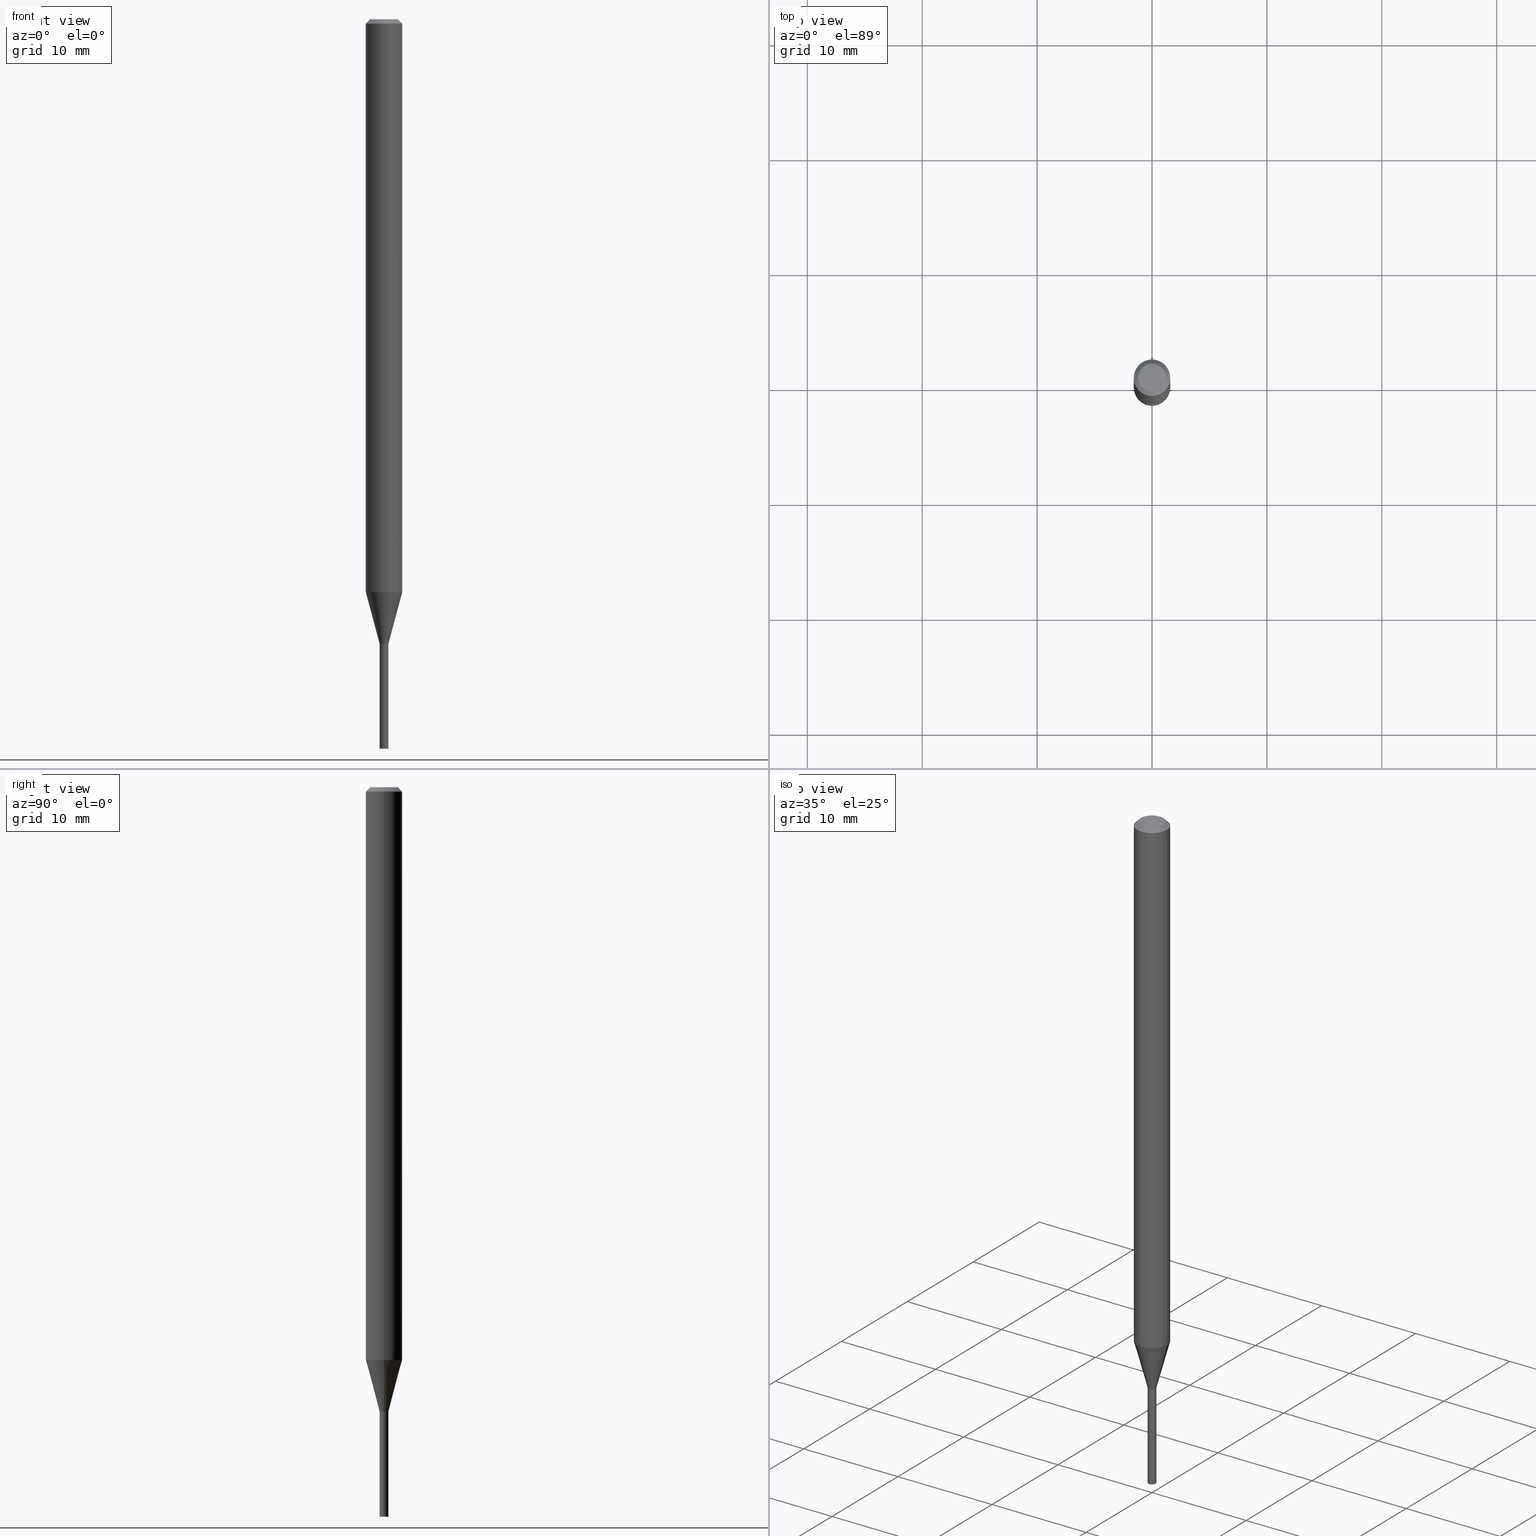
[diagram: canonical four-view strip — front | top / right | iso, engineering-drawing reading convention]
A machine part, canonical four-view strip (front | top / right | iso — engineering-drawing reading convention). The complete STEP part file that produces these views, byte-faithful:
ISO-10303-21;
HEADER;
FILE_DESCRIPTION (( 'STEP AP203' ),
    '1' );
FILE_NAME ('01287.STEP',
    '2024-03-20T01:02:49',
    ( '' ),
    ( '' ),
    'SwSTEP 2.0',
    'SolidWorks 2023',
    '' );
FILE_SCHEMA (( 'CONFIG_CONTROL_DESIGN' ));
ENDSEC;

DATA;
#1 = DIRECTION ( 'NONE',  ( 1.000000000000000000, -6.982962677686266711E-15, 0.000000000000000000 ) ) ;
#2 = EDGE_CURVE ( 'NONE', #327, #207, #42, .T. ) ;
#3 = CYLINDRICAL_SURFACE ( 'NONE', #332, 0.01499999999999999944 ) ;
#4 = EDGE_CURVE ( 'NONE', #425, #25, #303, .T. ) ;
#5 = CIRCLE ( 'NONE', #254, 0.01499999999999964730 ) ;
#6 = CARTESIAN_POINT ( 'NONE',  ( 6.113672015462842613E-29, -8.728703347107864943E-15, -2.500000000000000000 ) ) ;
#7 = LINE ( 'NONE', #256, #43 ) ;
#8 = EDGE_LOOP ( 'NONE', ( #313, #339, #345, #234 ) ) ;
#9 = DIRECTION ( 'NONE',  ( -1.000000000000000000, 6.982962677686265922E-15, -4.876176775795935793E-29 ) ) ;
#10 = EDGE_LOOP ( 'NONE', ( #23, #143, #402, #388 ) ) ;
#11 = EDGE_CURVE ( 'NONE', #202, #425, #152, .T. ) ;
#12 = CARTESIAN_POINT ( 'NONE',  ( -0.01499999999999978434, 1.065814103640134955E-16, -7.378402635382252559E-31 ) ) ;
#13 = CARTESIAN_POINT ( 'NONE',  ( 5.233303245236192586E-29, -7.471770065124331886E-15, -2.140000000000000124 ) ) ;
#14 = CARTESIAN_POINT ( 'NONE',  ( 0.000000000000000000, 0.000000000000000000, 0.000000000000000000 ) ) ;
#15 = ORIENTED_EDGE ( 'NONE', *, *, #219, .T. ) ;
#16 = ORIENTED_EDGE ( 'NONE', *, *, #193, .T. ) ;
#17 = EDGE_CURVE ( 'NONE', #239, #75, #74, .T. ) ;
#18 = VECTOR ( 'NONE', #435, 39.37007874015748143 ) ;
#19 = DIRECTION ( 'NONE',  ( 1.000000000000000000, -6.982962677686266711E-15, 4.876176775795935793E-29 ) ) ;
#20 = PERSON_AND_ORGANIZATION ( #160, #182 ) ;
#21 = VERTEX_POINT ( 'NONE', #333 ) ;
#22 = CARTESIAN_POINT ( 'NONE',  ( 5.233303245236192586E-29, -7.471770065124331886E-15, -2.140000000000000124 ) ) ;
#23 = ORIENTED_EDGE ( 'NONE', *, *, #434, .F. ) ;
#24 = DIRECTION ( 'NONE',  ( 1.000000000000000000, -6.982962677686299054E-15, 0.000000000000000000 ) ) ;
#25 = VERTEX_POINT ( 'NONE', #268 ) ;
#26 = LINE ( 'NONE', #426, #79 ) ;
#27 = APPLICATION_CONTEXT ( 'configuration controlled 3d designs of mechanical parts and assemblies' ) ;
#28 = CLOSED_SHELL ( 'NONE', ( #105, #163, #301, #31, #320, #99, #356, #259, #29, #183, #267, #91 ) ) ;
#29 = ADVANCED_FACE ( 'NONE', ( #412 ), #329, .F. ) ;
#30 = EDGE_LOOP ( 'NONE', ( #216, #279 ) ) ;
#31 = ADVANCED_FACE ( 'NONE', ( #197 ), #113, .T. ) ;
#32 = LOCAL_TIME ( 21, 2, 49.00000000000000000, #337 ) ;
#33 = FACE_OUTER_BOUND ( 'NONE', #192, .T. ) ;
#34 = DIRECTION ( 'NONE',  ( -0.7071067811865642261, 7.493145998870414114E-15, 0.7071067811865309194 ) ) ;
#35 = AXIS2_PLACEMENT_3D ( 'NONE', #341, #156, #238 ) ;
#36 =( CONVERSION_BASED_UNIT ( 'INCH', #290 ) LENGTH_UNIT ( ) NAMED_UNIT ( #340 ) );
#37 = UNCERTAINTY_MEASURE_WITH_UNIT (LENGTH_MEASURE( 1.000000000000000082E-05 ), #36, 'distance_accuracy_value', 'NONE');
#38 = EDGE_CURVE ( 'NONE', #21, #239, #397, .T. ) ;
#39 = VERTEX_POINT ( 'NONE', #157 ) ;
#40 = APPROVAL_ROLE ( '' ) ;
#41 = ORIENTED_EDGE ( 'NONE', *, *, #2, .F. ) ;
#42 = CIRCLE ( 'NONE', #211, 0.04749999999999999362 ) ;
#43 = VECTOR ( 'NONE', #365, 39.37007874015748143 ) ;
#44 = CARTESIAN_POINT ( 'NONE',  ( -1.466534075644639810E-44, 2.093821988217664729E-30, 5.996944520148642253E-16 ) ) ;
#45 = COORDINATED_UNIVERSAL_TIME_OFFSET ( 5, 0, .BEHIND. ) ;
#46 = DIRECTION ( 'NONE',  ( -2.445468806185136597E-29, 3.491481338843145583E-15, 1.000000000000000000 ) ) ;
#47 = SHAPE_DEFINITION_REPRESENTATION ( #300, #377 ) ;
#48 = EDGE_CURVE ( 'NONE', #207, #327, #364, .T. ) ;
#49 = EDGE_LOOP ( 'NONE', ( #404, #115, #16, #237 ) ) ;
#50 = CARTESIAN_POINT ( 'NONE',  ( 5.232080510833100906E-29, -7.470024324454911171E-15, -2.139500000000000401 ) ) ;
#51 = DATE_AND_TIME ( #87, #432 ) ;
#52 = ORIENTED_EDGE ( 'NONE', *, *, #277, .T. ) ;
#53 = LINE ( 'NONE', #240, #201 ) ;
#54 = VECTOR ( 'NONE', #242, 39.37007874015748854 ) ;
#55 = PERSON_AND_ORGANIZATION ( #160, #182 ) ;
#56 = VERTEX_POINT ( 'NONE', #374 ) ;
#57 = ORIENTED_EDGE ( 'NONE', *, *, #417, .T. ) ;
#58 = LINE ( 'NONE', #94, #191 ) ;
#59 = EDGE_CURVE ( 'NONE', #310, #75, #381, .T. ) ;
#60 = ORIENTED_EDGE ( 'NONE', *, *, #417, .F. ) ;
#61 = DIRECTION ( 'NONE',  ( 2.445468806185136597E-29, -3.491481338843145583E-15, -1.000000000000000000 ) ) ;
#62 = LINE ( 'NONE', #97, #249 ) ;
#63 = CC_DESIGN_APPROVAL ( #179, ( #401 ) ) ;
#64 = CARTESIAN_POINT ( 'NONE',  ( 3.668203209277705088E-31, -5.237222008264718399E-17, -0.01499999999999999944 ) ) ;
#65 = DIRECTION ( 'NONE',  ( 1.000000000000000000, -6.982962677686299054E-15, 0.000000000000000000 ) ) ;
#66 = DIRECTION ( 'NONE',  ( -2.445468806185136597E-29, 3.491481338843145583E-15, 1.000000000000000000 ) ) ;
#67 = AXIS2_PLACEMENT_3D ( 'NONE', #405, #302, #77 ) ;
#68 = CARTESIAN_POINT ( 'NONE',  ( 5.233303245236192586E-29, -7.471770065124331886E-15, -2.140000000000000124 ) ) ;
#69 = VECTOR ( 'NONE', #228, 39.37007874015748143 ) ;
#70 = FACE_OUTER_BOUND ( 'NONE', #199, .T. ) ;
#71 =( LENGTH_UNIT ( ) NAMED_UNIT ( * ) SI_UNIT ( $, .METRE. ) );
#72 = EDGE_CURVE ( 'NONE', #56, #202, #5, .T. ) ;
#73 = ORIENTED_EDGE ( 'NONE', *, *, #247, .F. ) ;
#74 = LINE ( 'NONE', #84, #409 ) ;
#75 = VERTEX_POINT ( 'NONE', #270 ) ;
#76 = PRODUCT ( '01287', '01287', '', ( #343 ) ) ;
#77 = DIRECTION ( 'NONE',  ( 1.000000000000000000, -6.982962677686267499E-15, 4.852736867747366768E-29 ) ) ;
#78 = APPROVAL_STATUS ( 'not_yet_approved' ) ;
#79 = VECTOR ( 'NONE', #133, 39.37007874015748143 ) ;
#80 = LOCAL_TIME ( 21, 2, 49.00000000000000000, #446 ) ;
#81 = EDGE_CURVE ( 'NONE', #39, #123, #292, .T. ) ;
#82 = DIRECTION ( 'NONE',  ( -2.445468806185136597E-29, 3.491481338843145583E-15, 1.000000000000000000 ) ) ;
#83 = PERSON_AND_ORGANIZATION ( #160, #182 ) ;
#84 = CARTESIAN_POINT ( 'NONE',  ( -0.01499999999999999944, 1.065814103640150239E-16, -7.378402635382358533E-31 ) ) ;
#85 = CYLINDRICAL_SURFACE ( 'NONE', #459, 0.01499999999999999944 ) ;
#86 = CYLINDRICAL_SURFACE ( 'NONE', #181, 0.01499999999999978434 ) ;
#87 = CALENDAR_DATE ( 2024, 19, 3 ) ;
#88 = ORIENTED_EDGE ( 'NONE', *, *, #210, .F. ) ;
#89 = AXIS2_PLACEMENT_3D ( 'NONE', #50, #82, #147 ) ;
#90 = ORIENTED_EDGE ( 'NONE', *, *, #312, .T. ) ;
#91 = ADVANCED_FACE ( 'NONE', ( #194 ), #145, .F. ) ;
#92 = DIRECTION ( 'NONE',  ( 1.000000000000000000, -6.982962677686265922E-15, 4.876176775795935793E-29 ) ) ;
#93 = ORIENTED_EDGE ( 'NONE', *, *, #408, .F. ) ;
#94 = CARTESIAN_POINT ( 'NONE',  ( -0.01499999999999964730, -7.365188654760319130E-15, -2.140000000000000124 ) ) ;
#95 = ORIENTED_EDGE ( 'NONE', *, *, #460, .T. ) ;
#96 = CARTESIAN_POINT ( 'NONE',  ( 0.04749999999999999362, -4.035134999187568269E-16, 5.996944520148667891E-16 ) ) ;
#97 = CARTESIAN_POINT ( 'NONE',  ( 0.01450000000000000074, -7.573023023950783826E-15, -2.140000000000000124 ) ) ;
#98 = CIRCLE ( 'NONE', #104, 0.01499999999999999944 ) ;
#99 = ADVANCED_FACE ( 'NONE', ( #450 ), #371, .T. ) ;
#100 = CC_DESIGN_DATE_AND_TIME_ASSIGNMENT ( #233, #120, ( #286 ) ) ;
#101 = LINE ( 'NONE', #400, #18 ) ;
#102 = CARTESIAN_POINT ( 'NONE',  ( 5.233303245236192586E-29, -7.471770065124331886E-15, -2.140000000000000124 ) ) ;
#103 = DIRECTION ( 'NONE',  ( 2.445468806185136597E-29, -3.491481338843145583E-15, -1.000000000000000000 ) ) ;
#104 = AXIS2_PLACEMENT_3D ( 'NONE', #6, #248, #137 ) ;
#105 = ADVANCED_FACE ( 'NONE', ( #367 ), #86, .F. ) ;
#106 = CARTESIAN_POINT ( 'NONE',  ( -0.06250000000000000000, -3.008510271185196458E-15, -0.01499999999999999944 ) ) ;
#107 = ADVANCED_FACE ( 'NONE', ( #336 ), #465, .F. ) ;
#108 = APPLICATION_CONTEXT ( 'configuration controlled 3d designs of mechanical parts and assemblies' ) ;
#109 = CONICAL_SURFACE ( 'NONE', #344, 0.06250000000000000000, 0.7853981633974284060 ) ;
#110 = DIRECTION ( 'NONE',  ( 1.000000000000000000, -6.982962677686266711E-15, 4.876176775795935793E-29 ) ) ;
#111 = CARTESIAN_POINT ( 'NONE',  ( 3.668203209277705088E-31, -5.237222008264718399E-17, -0.01499999999999999944 ) ) ;
#112 = CARTESIAN_POINT ( 'NONE',  ( 5.233303245236192586E-29, -7.471770065124331886E-15, -2.140000000000000124 ) ) ;
#113 = CYLINDRICAL_SURFACE ( 'NONE', #431, 0.06250000000000000000 ) ;
#114 = SECURITY_CLASSIFICATION_LEVEL ( 'unclassified' ) ;
#115 = ORIENTED_EDGE ( 'NONE', *, *, #81, .T. ) ;
#116 = CC_DESIGN_PERSON_AND_ORGANIZATION_ASSIGNMENT ( #198, #262, ( #286 ) ) ;
#117 = CARTESIAN_POINT ( 'NONE',  ( 5.233303245236192586E-29, -7.471770065124331886E-15, -2.140000000000000124 ) ) ;
#118 = CIRCLE ( 'NONE', #393, 0.06250000000000000000 ) ;
#119 = ORIENTED_EDGE ( 'NONE', *, *, #48, .F. ) ;
#120 = DATE_TIME_ROLE ( 'creation_date' ) ;
#121 = DIRECTION ( 'NONE',  ( 1.000000000000000000, -6.982962677686238312E-15, 0.000000000000000000 ) ) ;
#122 = PERSON_AND_ORGANIZATION_ROLE ( 'classification_officer' ) ;
#123 = VERTEX_POINT ( 'NONE', #131 ) ;
#124 = LINE ( 'NONE', #424, #54 ) ;
#125 = DIRECTION ( 'NONE',  ( 1.000000000000000000, -6.982962677686265922E-15, 4.876176775795935793E-29 ) ) ;
#126 = EDGE_CURVE ( 'NONE', #461, #165, #246, .T. ) ;
#127 = EDGE_LOOP ( 'NONE', ( #440, #454, #218, #463 ) ) ;
#128 = AXIS2_PLACEMENT_3D ( 'NONE', #117, #264, #257 ) ;
#129 = ORIENTED_EDGE ( 'NONE', *, *, #126, .F. ) ;
#130 = DIRECTION ( 'NONE',  ( -2.445468806185136597E-29, 3.491481338843145583E-15, 1.000000000000000000 ) ) ;
#131 = CARTESIAN_POINT ( 'NONE',  ( 0.01450000000000000074, -7.573023023950783826E-15, -2.140000000000000124 ) ) ;
#132 = ORIENTED_EDGE ( 'NONE', *, *, #126, .T. ) ;
#133 = DIRECTION ( 'NONE',  ( -2.445468806185136877E-29, 3.491481338843145188E-15, 1.000000000000000000 ) ) ;
#134 = AXIS2_PLACEMENT_3D ( 'NONE', #462, #130, #278 ) ;
#135 = CARTESIAN_POINT ( 'NONE',  ( -0.01450000000000000074, -7.368741368439117662E-15, -2.140000000000000124 ) ) ;
#136 = CARTESIAN_POINT ( 'NONE',  ( -0.06250000000000000000, -6.408737532137808059E-15, -1.962727586640477417 ) ) ;
#137 = DIRECTION ( 'NONE',  ( 1.000000000000000000, -6.982962677686203602E-15, 0.000000000000000000 ) ) ;
#138 = ADVANCED_FACE ( 'NONE', ( #33 ), #3, .T. ) ;
#139 = CC_DESIGN_SECURITY_CLASSIFICATION ( #281, ( #401 ) ) ;
#140 = PRODUCT_RELATED_PRODUCT_CATEGORY ( 'detail', '', ( #76 ) ) ;
#141 = CARTESIAN_POINT ( 'NONE',  ( -0.01499999999999999944, -7.993655295752084081E-15, -2.500000000000000000 ) ) ;
#142 = CARTESIAN_POINT ( 'NONE',  ( 5.232080510833100906E-29, -7.470024324454911171E-15, -2.139500000000000401 ) ) ;
#143 = ORIENTED_EDGE ( 'NONE', *, *, #11, .T. ) ;
#144 = DESIGN_CONTEXT ( 'detailed design', #27, 'design' ) ;
#145 = CYLINDRICAL_SURFACE ( 'NONE', #155, 0.01499999999999978434 ) ;
#146 = AXIS2_PLACEMENT_3D ( 'NONE', #162, #414, #309 ) ;
#147 = DIRECTION ( 'NONE',  ( 1.000000000000000000, -6.982962677686239100E-15, 0.000000000000000000 ) ) ;
#148 = COORDINATED_UNIVERSAL_TIME_OFFSET ( 5, 0, .BEHIND. ) ;
#149 = CARTESIAN_POINT ( 'NONE',  ( 0.000000000000000000, 0.000000000000000000, 0.000000000000000000 ) ) ;
#150 = APPLICATION_PROTOCOL_DEFINITION ( 'international standard', 'config_control_design', 1994, #27 ) ;
#151 = CC_DESIGN_DATE_AND_TIME_ASSIGNMENT ( #269, #411, ( #281 ) ) ;
#152 = LINE ( 'NONE', #12, #69 ) ;
#153 = CALENDAR_DATE ( 2024, 19, 3 ) ;
#154 = VERTEX_POINT ( 'NONE', #136 ) ;
#155 = AXIS2_PLACEMENT_3D ( 'NONE', #149, #196, #298 ) ;
#156 = DIRECTION ( 'NONE',  ( -2.445468806185136597E-29, 3.491481338843145583E-15, 1.000000000000000000 ) ) ;
#157 = CARTESIAN_POINT ( 'NONE',  ( -0.01450000000000000074, -7.366092141265007250E-15, -2.140000000000000124 ) ) ;
#158 = PERSON_AND_ORGANIZATION_ROLE ( 'design_owner' ) ;
#159 = MANIFOLD_SOLID_BREP ( 'Body-Move/Copy2[1]', #420 ) ;
#160 = PERSON ( 'UNSPECIFIED', 'UNSPECIFIED', 'UNSPECIFIED', ('UNSPECIFIED'), ('UNSPECIFIED'), ('UNSPECIFIED') ) ;
#161 = ORIENTED_EDGE ( 'NONE', *, *, #193, .F. ) ;
#162 = CARTESIAN_POINT ( 'NONE',  ( 1.047444401653463219E-16, 0.01499999999999252799, -2.140000000000000124 ) ) ;
#163 = ADVANCED_FACE ( 'NONE', ( #284 ), #321, .T. ) ;
#164 = PERSON_AND_ORGANIZATION ( #160, #182 ) ;
#165 = VERTEX_POINT ( 'NONE', #326 ) ;
#166 = CARTESIAN_POINT ( 'NONE',  ( 5.233303245236192586E-29, -7.471770065124331886E-15, -2.140000000000000124 ) ) ;
#167 = CC_DESIGN_PERSON_AND_ORGANIZATION_ASSIGNMENT ( #406, #122, ( #281 ) ) ;
#168 = ORIENTED_EDGE ( 'NONE', *, *, #177, .F. ) ;
#169 = FACE_OUTER_BOUND ( 'NONE', #8, .T. ) ;
#170 = AXIS2_PLACEMENT_3D ( 'NONE', #142, #289, #323 ) ;
#171 = ORIENTED_EDGE ( 'NONE', *, *, #59, .T. ) ;
#172 = DIRECTION ( 'NONE',  ( -0.2588190451025212391, 5.211531920934549464E-15, 0.9659258262890679791 ) ) ;
#173 =( NAMED_UNIT ( * ) PLANE_ANGLE_UNIT ( ) SI_UNIT ( $, .RADIAN. ) );
#174 = AXIS2_PLACEMENT_3D ( 'NONE', #22, #205, #24 ) ;
#175 = APPROVAL_PERSON_ORGANIZATION ( #413, #206, #299 ) ;
#176 = FACE_OUTER_BOUND ( 'NONE', #452, .T. ) ;
#177 = EDGE_CURVE ( 'NONE', #25, #425, #458, .T. ) ;
#178 = DIRECTION ( 'NONE',  ( -2.445468806185136877E-29, 3.491481338843145188E-15, 1.000000000000000000 ) ) ;
#179 = APPROVAL ( #296, 'UNSPECIFIED' ) ;
#180 = CARTESIAN_POINT ( 'NONE',  ( -0.04749999999999999362, 3.578768372314221353E-16, 5.996944520148618587E-16 ) ) ;
#181 = AXIS2_PLACEMENT_3D ( 'NONE', #232, #294, #110 ) ;
#182 = ORGANIZATION ( 'UNSPECIFIED', 'UNSPECIFIED', '' ) ;
#183 = ADVANCED_FACE ( 'NONE', ( #70 ), #331, .F. ) ;
#184 = DIRECTION ( 'NONE',  ( -2.445468806185136597E-29, 3.491481338843145583E-15, 1.000000000000000000 ) ) ;
#185 = EDGE_LOOP ( 'NONE', ( #186, #423, #350, #386 ) ) ;
#186 = ORIENTED_EDGE ( 'NONE', *, *, #362, .F. ) ;
#187 = DIRECTION ( 'NONE',  ( 1.000000000000000000, -6.982962677686238312E-15, 0.000000000000000000 ) ) ;
#188 = DIRECTION ( 'NONE',  ( -2.445468806185136597E-29, 3.491481338843145583E-15, 1.000000000000000000 ) ) ;
#189 = DATE_AND_TIME ( #153, #244 ) ;
#190 = AXIS2_PLACEMENT_3D ( 'NONE', #102, #66, #324 ) ;
#191 = VECTOR ( 'NONE', #172, 39.37007874015748854 ) ;
#192 = EDGE_LOOP ( 'NONE', ( #297, #227, #263, #369 ) ) ;
#193 = EDGE_CURVE ( 'NONE', #123, #25, #62, .T. ) ;
#194 = FACE_OUTER_BOUND ( 'NONE', #127, .T. ) ;
#195 = CALENDAR_DATE ( 2024, 19, 3 ) ;
#196 = DIRECTION ( 'NONE',  ( -2.445468806185136597E-29, 3.491481338843145583E-15, 1.000000000000000000 ) ) ;
#197 = FACE_OUTER_BOUND ( 'NONE', #204, .T. ) ;
#198 = PERSON_AND_ORGANIZATION ( #160, #182 ) ;
#199 = EDGE_LOOP ( 'NONE', ( #88, #260 ) ) ;
#200 = AXIS2_PLACEMENT_3D ( 'NONE', #372, #217, #415 ) ;
#201 = VECTOR ( 'NONE', #273, 39.37007874015748854 ) ;
#202 = VERTEX_POINT ( 'NONE', #466 ) ;
#203 = CARTESIAN_POINT ( 'NONE',  ( 3.668203209277705088E-31, -5.237222008264718399E-17, -0.01499999999999999944 ) ) ;
#204 = EDGE_LOOP ( 'NONE', ( #348, #95, #60, #129 ) ) ;
#205 = DIRECTION ( 'NONE',  ( -2.445468806185136597E-29, 3.491481338843145583E-15, 1.000000000000000000 ) ) ;
#206 = APPROVAL ( #416, 'UNSPECIFIED' ) ;
#207 = VERTEX_POINT ( 'NONE', #180 ) ;
#208 = AXIS2_PLACEMENT_3D ( 'NONE', #441, #410, #9 ) ;
#209 = CARTESIAN_POINT ( 'NONE',  ( 0.06250000000000000000, -7.289261909343262345E-15, -1.962727586640477417 ) ) ;
#210 = EDGE_CURVE ( 'NONE', #123, #39, #222, .T. ) ;
#211 = AXIS2_PLACEMENT_3D ( 'NONE', #44, #188, #379 ) ;
#212 = CC_DESIGN_APPROVAL ( #206, ( #286 ) ) ;
#213 = AXIS2_PLACEMENT_3D ( 'NONE', #68, #283, #65 ) ;
#214 = AXIS2_PLACEMENT_3D ( 'NONE', #64, #215, #363 ) ;
#215 = DIRECTION ( 'NONE',  ( -2.445468806185136597E-29, 3.491481338843145583E-15, 1.000000000000000000 ) ) ;
#216 = ORIENTED_EDGE ( 'NONE', *, *, #48, .T. ) ;
#217 = DIRECTION ( 'NONE',  ( -2.445468806185136597E-29, 3.491481338843145583E-15, 1.000000000000000000 ) ) ;
#218 = ORIENTED_EDGE ( 'NONE', *, *, #443, .T. ) ;
#219 = EDGE_CURVE ( 'NONE', #239, #21, #98, .T. ) ;
#220 = CARTESIAN_POINT ( 'NONE',  ( 5.233303245236192586E-29, -7.471770065124331886E-15, -2.140000000000000124 ) ) ;
#221 = PERSON_AND_ORGANIZATION ( #160, #182 ) ;
#222 = CIRCLE ( 'NONE', #213, 0.01450000000000000074 ) ;
#223 = AXIS2_PLACEMENT_3D ( 'NONE', #311, #231, #354 ) ;
#224 = ORIENTED_EDGE ( 'NONE', *, *, #398, .T. ) ;
#225 = DIRECTION ( 'NONE',  ( -2.445468806185136597E-29, 3.491481338843145583E-15, 1.000000000000000000 ) ) ;
#226 = DATE_AND_TIME ( #195, #32 ) ;
#227 = ORIENTED_EDGE ( 'NONE', *, *, #17, .T. ) ;
#228 = DIRECTION ( 'NONE',  ( -2.445468806185136877E-29, 3.491481338843145188E-15, 1.000000000000000000 ) ) ;
#229 = APPROVAL_DATE_TIME ( #51, #206 ) ;
#230 = EDGE_LOOP ( 'NONE', ( #171, #90 ) ) ;
#231 = DIRECTION ( 'NONE',  ( -2.445468806185136597E-29, 3.491481338843145583E-15, 1.000000000000000000 ) ) ;
#232 = CARTESIAN_POINT ( 'NONE',  ( 0.000000000000000000, 0.000000000000000000, 0.000000000000000000 ) ) ;
#233 = DATE_AND_TIME ( #335, #449 ) ;
#234 = ORIENTED_EDGE ( 'NONE', *, *, #349, .F. ) ;
#235 = AXIS2_PLACEMENT_3D ( 'NONE', #203, #61, #351 ) ;
#236 = CONICAL_SURFACE ( 'NONE', #223, 0.01499999999999964730, 0.2617993877991499629 ) ;
#237 = ORIENTED_EDGE ( 'NONE', *, *, #4, .F. ) ;
#238 = DIRECTION ( 'NONE',  ( 1.000000000000000000, -6.982962677686266711E-15, 4.876176775795935793E-29 ) ) ;
#239 = VERTEX_POINT ( 'NONE', #141 ) ;
#240 = CARTESIAN_POINT ( 'NONE',  ( 0.01499999999999964730, -7.576514505289623678E-15, -2.140000000000000124 ) ) ;
#241 = VERTEX_POINT ( 'NONE', #106 ) ;
#242 = DIRECTION ( 'NONE',  ( -0.7071067811865333619, 2.468850131082109149E-15, -0.7071067811865614505 ) ) ;
#243 = AXIS2_PLACEMENT_3D ( 'NONE', #13, #306, #403 ) ;
#244 = LOCAL_TIME ( 21, 2, 49.00000000000000000, #45 ) ;
#245 = CIRCLE ( 'NONE', #214, 0.06250000000000000000 ) ;
#246 = LINE ( 'NONE', #358, #427 ) ;
#247 = EDGE_CURVE ( 'NONE', #327, #165, #252, .T. ) ;
#248 = DIRECTION ( 'NONE',  ( -2.445468806185136597E-29, 3.491481338843145583E-15, 1.000000000000000000 ) ) ;
#249 = VECTOR ( 'NONE', #433, 39.37007874015748143 ) ;
#250 = CIRCLE ( 'NONE', #437, 0.06250000000000000000 ) ;
#251 = DIRECTION ( 'NONE',  ( -2.445468806185136597E-29, 3.491481338843145583E-15, 1.000000000000000000 ) ) ;
#252 = LINE ( 'NONE', #285, #280 ) ;
#253 =( NAMED_UNIT ( * ) SI_UNIT ( $, .STERADIAN. ) SOLID_ANGLE_UNIT ( ) );
#254 = AXIS2_PLACEMENT_3D ( 'NONE', #220, #46, #121 ) ;
#255 = VECTOR ( 'NONE', #34, 39.37007874015748143 ) ;
#256 = CARTESIAN_POINT ( 'NONE',  ( -0.06250000000000000000, 4.440892098500626162E-16, -3.074334431409316114E-30 ) ) ;
#257 = DIRECTION ( 'NONE',  ( 1.000000000000000000, -6.982962677686238312E-15, 0.000000000000000000 ) ) ;
#258 = DIRECTION ( 'NONE',  ( -2.445468806185136597E-29, 3.491481338843145583E-15, 1.000000000000000000 ) ) ;
#259 = ADVANCED_FACE ( 'NONE', ( #176 ), #109, .T. ) ;
#260 = ORIENTED_EDGE ( 'NONE', *, *, #81, .F. ) ;
#261 = DIRECTION ( 'NONE',  ( 1.000000000000000000, -6.982962677686203602E-15, 0.000000000000000000 ) ) ;
#262 = PERSON_AND_ORGANIZATION_ROLE ( 'creator' ) ;
#263 = ORIENTED_EDGE ( 'NONE', *, *, #59, .F. ) ;
#264 = DIRECTION ( 'NONE',  ( -2.445468806185136597E-29, 3.491481338843145583E-15, 1.000000000000000000 ) ) ;
#265 = COORDINATED_UNIVERSAL_TIME_OFFSET ( 5, 0, .BEHIND. ) ;
#266 = APPROVAL_PERSON_ORGANIZATION ( #20, #179, #40 ) ;
#267 = ADVANCED_FACE ( 'NONE', ( #419 ), #391, .T. ) ;
#268 = CARTESIAN_POINT ( 'NONE',  ( 0.01499999999999992312, -7.574768764620204541E-15, -2.139500000000000401 ) ) ;
#269 = DATE_AND_TIME ( #347, #80 ) ;
#270 = CARTESIAN_POINT ( 'NONE',  ( -0.01499999999999999944, -7.993655295752084081E-15, -2.140000000000000124 ) ) ;
#271 = DIRECTION ( 'NONE',  ( 1.000000000000000000, 0.000000000000000000, 0.000000000000000000 ) ) ;
#272 = EDGE_LOOP ( 'NONE', ( #308, #15, #52, #392 ) ) ;
#273 = DIRECTION ( 'NONE',  ( 0.2588190451025212391, 1.565188264969622362E-15, 0.9659258262890679791 ) ) ;
#274 = ORIENTED_EDGE ( 'NONE', *, *, #328, .F. ) ;
#275 = CYLINDRICAL_SURFACE ( 'NONE', #35, 0.06250000000000000000 ) ;
#276 = EDGE_LOOP ( 'NONE', ( #456, #422 ) ) ;
#277 = EDGE_CURVE ( 'NONE', #21, #310, #26, .T. ) ;
#278 = DIRECTION ( 'NONE',  ( 1.000000000000000000, -6.982962677686262766E-15, 0.000000000000000000 ) ) ;
#279 = ORIENTED_EDGE ( 'NONE', *, *, #2, .T. ) ;
#280 = VECTOR ( 'NONE', #360, 39.37007874015748854 ) ;
#281 = SECURITY_CLASSIFICATION ( '', '', #114 ) ;
#282 = DIRECTION ( 'NONE',  ( -2.445468806185136597E-29, 3.491481338843145583E-15, 1.000000000000000000 ) ) ;
#283 = DIRECTION ( 'NONE',  ( -2.445468806185136597E-29, 3.491481338843145583E-15, 1.000000000000000000 ) ) ;
#284 = FACE_OUTER_BOUND ( 'NONE', #317, .T. ) ;
#285 = CARTESIAN_POINT ( 'NONE',  ( 0.06250000000000000000, -4.811533449433679005E-16, -0.01499999999999999944 ) ) ;
#286 = PRODUCT_DEFINITION ( 'UNKNOWN', '', #401, #144 ) ;
#287 = AXIS2_PLACEMENT_3D ( 'NONE', #385, #355, #92 ) ;
#288 = CIRCLE ( 'NONE', #315, 0.01499999999999964730 ) ;
#289 = DIRECTION ( 'NONE',  ( -2.445468806185136597E-29, 3.491481338843145583E-15, 1.000000000000000000 ) ) ;
#290 = LENGTH_MEASURE_WITH_UNIT ( LENGTH_MEASURE( 0.02539999999999999897 ), #71 );
#291 = ORIENTED_EDGE ( 'NONE', *, *, #460, .F. ) ;
#292 = CIRCLE ( 'NONE', #200, 0.01450000000000000074 ) ;
#293 = ADVANCED_FACE ( 'NONE', ( #384 ), #464, .F. ) ;
#294 = DIRECTION ( 'NONE',  ( -2.445468806185136597E-29, 3.491481338843145583E-15, 1.000000000000000000 ) ) ;
#295 = DIRECTION ( 'NONE',  ( -2.445468806185136877E-29, 3.491481338843145188E-15, 1.000000000000000000 ) ) ;
#296 = APPROVAL_STATUS ( 'not_yet_approved' ) ;
#297 = ORIENTED_EDGE ( 'NONE', *, *, #38, .T. ) ;
#298 = DIRECTION ( 'NONE',  ( 1.000000000000000000, -6.982962677686266711E-15, 4.876176775795935793E-29 ) ) ;
#299 = APPROVAL_ROLE ( '' ) ;
#300 = PRODUCT_DEFINITION_SHAPE ( 'NONE', 'NONE',  #286 ) ;
#301 = ADVANCED_FACE ( 'NONE', ( #451 ), #436, .T. ) ;
#302 = DIRECTION ( 'NONE',  ( -2.445468806185136597E-29, 3.491481338843145583E-15, 1.000000000000000000 ) ) ;
#303 = CIRCLE ( 'NONE', #89, 0.01499999999999992312 ) ;
#304 = CC_DESIGN_APPROVAL ( #316, ( #281 ) ) ;
#305 = FACE_OUTER_BOUND ( 'NONE', #272, .T. ) ;
#306 = DIRECTION ( 'NONE',  ( -2.445468806185136597E-29, 3.491481338843145583E-15, 1.000000000000000000 ) ) ;
#307 = DIRECTION ( 'NONE',  ( 0.000000000000000000, 0.000000000000000000, 1.000000000000000000 ) ) ;
#308 = ORIENTED_EDGE ( 'NONE', *, *, #17, .F. ) ;
#309 = DIRECTION ( 'NONE',  ( -1.000000000000000000, 6.982962677686265922E-15, -4.876176775795935793E-29 ) ) ;
#310 = VERTEX_POINT ( 'NONE', #394 ) ;
#311 = CARTESIAN_POINT ( 'NONE',  ( 5.233303245236192586E-29, -7.471770065124331886E-15, -2.140000000000000124 ) ) ;
#312 = EDGE_CURVE ( 'NONE', #75, #310, #352, .T. ) ;
#313 = ORIENTED_EDGE ( 'NONE', *, *, #72, .T. ) ;
#314 = AXIS2_PLACEMENT_3D ( 'NONE', #342, #445, #261 ) ;
#315 = AXIS2_PLACEMENT_3D ( 'NONE', #359, #282, #187 ) ;
#316 = APPROVAL ( #78, 'UNSPECIFIED' ) ;
#317 = EDGE_LOOP ( 'NONE', ( #366, #376, #168, #161 ) ) ;
#318 = DIRECTION ( 'NONE',  ( 1.000000000000000000, -6.982962677686267499E-15, 4.876176775795936353E-29 ) ) ;
#319 = MANIFOLD_SOLID_BREP ( 'Body-Move/Copy2[2]', #28 ) ;
#320 = ADVANCED_FACE ( 'NONE', ( #169 ), #236, .T. ) ;
#321 = CONICAL_SURFACE ( 'NONE', #190, 0.01450000000000000074, 0.7853981633974718157 ) ;
#322 =( GEOMETRIC_REPRESENTATION_CONTEXT ( 3 ) GLOBAL_UNCERTAINTY_ASSIGNED_CONTEXT ( ( #37 ) ) GLOBAL_UNIT_ASSIGNED_CONTEXT ( ( #36, #173, #253 ) ) REPRESENTATION_CONTEXT ( 'NONE', 'WORKASPACE' ) );
#323 = DIRECTION ( 'NONE',  ( 1.000000000000000000, -6.982962677686239100E-15, 0.000000000000000000 ) ) ;
#324 = DIRECTION ( 'NONE',  ( 1.000000000000000000, -6.982962677686299054E-15, 0.000000000000000000 ) ) ;
#325 = EDGE_CURVE ( 'NONE', #461, #154, #428, .T. ) ;
#326 = CARTESIAN_POINT ( 'NONE',  ( 0.06250000000000000000, -4.888073874380388472E-16, -0.01499999999999999944 ) ) ;
#327 = VERTEX_POINT ( 'NONE', #96 ) ;
#328 = EDGE_CURVE ( 'NONE', #207, #241, #124, .T. ) ;
#329 = PLANE ( 'NONE',  #208 ) ;
#330 = LINE ( 'NONE', #135, #255 ) ;
#331 = PLANE ( 'NONE',  #447 ) ;
#332 = AXIS2_PLACEMENT_3D ( 'NONE', #396, #184, #361 ) ;
#333 = CARTESIAN_POINT ( 'NONE',  ( 0.01499999999999999944, -8.833447787273158312E-15, -2.500000000000000000 ) ) ;
#334 = ORIENTED_EDGE ( 'NONE', *, *, #328, .T. ) ;
#335 = CALENDAR_DATE ( 2024, 19, 3 ) ;
#336 = FACE_OUTER_BOUND ( 'NONE', #276, .T. ) ;
#337 = COORDINATED_UNIVERSAL_TIME_OFFSET ( 5, 0, .BEHIND. ) ;
#338 = CC_DESIGN_PERSON_AND_ORGANIZATION_ASSIGNMENT ( #221, #453, ( #401 ) ) ;
#339 = ORIENTED_EDGE ( 'NONE', *, *, #362, .T. ) ;
#340 = DIMENSIONAL_EXPONENTS ( 1.000000000000000000, 0.000000000000000000, 0.000000000000000000, 0.000000000000000000, 0.000000000000000000, 0.000000000000000000, 0.000000000000000000 ) ;
#341 = CARTESIAN_POINT ( 'NONE',  ( 0.000000000000000000, 0.000000000000000000, 0.000000000000000000 ) ) ;
#342 = CARTESIAN_POINT ( 'NONE',  ( 6.113672015462842613E-29, -8.728703347107864943E-15, -2.500000000000000000 ) ) ;
#343 = MECHANICAL_CONTEXT ( 'NONE', #108, 'mechanical' ) ;
#344 = AXIS2_PLACEMENT_3D ( 'NONE', #430, #103, #346 ) ;
#345 = ORIENTED_EDGE ( 'NONE', *, *, #325, .F. ) ;
#346 = DIRECTION ( 'NONE',  ( -1.000000000000000000, 6.982962677686266711E-15, 0.000000000000000000 ) ) ;
#347 = CALENDAR_DATE ( 2024, 19, 3 ) ;
#348 = ORIENTED_EDGE ( 'NONE', *, *, #325, .T. ) ;
#349 = EDGE_CURVE ( 'NONE', #56, #461, #53, .T. ) ;
#350 = ORIENTED_EDGE ( 'NONE', *, *, #349, .T. ) ;
#351 = DIRECTION ( 'NONE',  ( -1.000000000000000000, 6.982962677686266711E-15, 0.000000000000000000 ) ) ;
#352 = CIRCLE ( 'NONE', #399, 0.01499999999999999944 ) ;
#353 = APPROVAL_PERSON_ORGANIZATION ( #55, #316, #373 ) ;
#354 = DIRECTION ( 'NONE',  ( 1.000000000000000000, -6.982962677686238312E-15, 0.000000000000000000 ) ) ;
#355 = DIRECTION ( 'NONE',  ( -2.438088387897960049E-29, 3.491481338843145188E-15, 1.000000000000000000 ) ) ;
#356 = ADVANCED_FACE ( 'NONE', ( #457 ), #275, .T. ) ;
#357 = CARTESIAN_POINT ( 'NONE',  ( 4.799789088168322690E-29, -6.852826741987870675E-15, -1.962727586640477417 ) ) ;
#358 = CARTESIAN_POINT ( 'NONE',  ( 0.06250000000000000000, -4.364351673553916694E-16, 3.047610484872459871E-30 ) ) ;
#359 = CARTESIAN_POINT ( 'NONE',  ( 5.233303245236192586E-29, -7.471770065124331886E-15, -2.140000000000000124 ) ) ;
#360 = DIRECTION ( 'NONE',  ( 0.7071067811865333619, -7.319954787623207136E-15, -0.7071067811865614505 ) ) ;
#361 = DIRECTION ( 'NONE',  ( 1.000000000000000000, -6.982962677686267499E-15, 4.876176775795936353E-29 ) ) ;
#362 = EDGE_CURVE ( 'NONE', #202, #154, #58, .T. ) ;
#363 = DIRECTION ( 'NONE',  ( 1.000000000000000000, -6.982962677686266711E-15, 0.000000000000000000 ) ) ;
#364 = CIRCLE ( 'NONE', #67, 0.04749999999999999362 ) ;
#365 = DIRECTION ( 'NONE',  ( -2.445468806185136877E-29, 3.491481338843145188E-15, 1.000000000000000000 ) ) ;
#366 = ORIENTED_EDGE ( 'NONE', *, *, #210, .T. ) ;
#367 = FACE_OUTER_BOUND ( 'NONE', #10, .T. ) ;
#368 = APPLICATION_PROTOCOL_DEFINITION ( 'international standard', 'config_control_design', 1994, #108 ) ;
#369 = ORIENTED_EDGE ( 'NONE', *, *, #277, .F. ) ;
#370 = CC_DESIGN_PERSON_AND_ORGANIZATION_ASSIGNMENT ( #83, #158, ( #76 ) ) ;
#371 = CONICAL_SURFACE ( 'NONE', #128, 0.01499999999999964730, 0.2617993877991499629 ) ;
#372 = CARTESIAN_POINT ( 'NONE',  ( 5.233303245236192586E-29, -7.471770065124331886E-15, -2.140000000000000124 ) ) ;
#373 = APPROVAL_ROLE ( '' ) ;
#374 = CARTESIAN_POINT ( 'NONE',  ( 0.01499999999999964730, -7.576514505289623678E-15, -2.140000000000000124 ) ) ;
#375 = APPROVAL_DATE_TIME ( #226, #316 ) ;
#376 = ORIENTED_EDGE ( 'NONE', *, *, #429, .T. ) ;
#377 = ADVANCED_BREP_SHAPE_REPRESENTATION ( '01287', ( #159, #319, #448 ), #322 ) ;
#378 = CARTESIAN_POINT ( 'NONE',  ( 0.000000000000000000, 0.000000000000000000, 0.000000000000000000 ) ) ;
#379 = DIRECTION ( 'NONE',  ( 1.000000000000000000, -6.982962677686267499E-15, 4.852736867747366768E-29 ) ) ;
#380 = PERSON_AND_ORGANIZATION_ROLE ( 'creator' ) ;
#381 = CIRCLE ( 'NONE', #243, 0.01499999999999999944 ) ;
#382 = EDGE_LOOP ( 'NONE', ( #41, #418, #57, #274 ) ) ;
#383 = ADVANCED_FACE ( 'NONE', ( #305 ), #85, .T. ) ;
#384 = FACE_OUTER_BOUND ( 'NONE', #230, .T. ) ;
#385 = CARTESIAN_POINT ( 'NONE',  ( 6.194428952736783458E-29, -8.613054816532157721E-15, -2.500000000000000000 ) ) ;
#386 = ORIENTED_EDGE ( 'NONE', *, *, #398, .F. ) ;
#387 = DIRECTION ( 'NONE',  ( -2.445468806185136597E-29, 3.491481338843145583E-15, 1.000000000000000000 ) ) ;
#388 = ORIENTED_EDGE ( 'NONE', *, *, #443, .F. ) ;
#389 = DIRECTION ( 'NONE',  ( -2.445468806185136597E-29, 3.491481338843145583E-15, 1.000000000000000000 ) ) ;
#390 = DIRECTION ( 'NONE',  ( -2.438088387897960049E-29, 3.491481338843145188E-15, 1.000000000000000000 ) ) ;
#391 = CONICAL_SURFACE ( 'NONE', #174, 0.01450000000000000074, 0.7853981633974718157 ) ;
#392 = ORIENTED_EDGE ( 'NONE', *, *, #312, .F. ) ;
#393 = AXIS2_PLACEMENT_3D ( 'NONE', #357, #251, #439 ) ;
#394 = CARTESIAN_POINT ( 'NONE',  ( 0.01499999999999999944, -7.576514505289626833E-15, -2.140000000000000124 ) ) ;
#395 = CARTESIAN_POINT ( 'NONE',  ( -0.01499999999999992312, -7.363442914090896838E-15, -2.139500000000000401 ) ) ;
#396 = CARTESIAN_POINT ( 'NONE',  ( 0.000000000000000000, 0.000000000000000000, 0.000000000000000000 ) ) ;
#397 = CIRCLE ( 'NONE', #314, 0.01499999999999999944 ) ;
#398 = EDGE_CURVE ( 'NONE', #154, #461, #118, .T. ) ;
#399 = AXIS2_PLACEMENT_3D ( 'NONE', #166, #387, #455 ) ;
#400 = CARTESIAN_POINT ( 'NONE',  ( 0.01499999999999978434, -1.047444401652924944E-16, 7.314265163693798417E-31 ) ) ;
#401 = PRODUCT_DEFINITION_FORMATION_WITH_SPECIFIED_SOURCE ( 'ANY', '', #76, .NOT_KNOWN. ) ;
#402 = ORIENTED_EDGE ( 'NONE', *, *, #4, .T. ) ;
#403 = DIRECTION ( 'NONE',  ( 1.000000000000000000, -6.982962677686268288E-15, 0.000000000000000000 ) ) ;
#404 = ORIENTED_EDGE ( 'NONE', *, *, #429, .F. ) ;
#405 = CARTESIAN_POINT ( 'NONE',  ( -1.466534075644639810E-44, 2.093821988217664729E-30, 5.996944520148642253E-16 ) ) ;
#406 = PERSON_AND_ORGANIZATION ( #160, #182 ) ;
#407 = EDGE_LOOP ( 'NONE', ( #291, #224, #132, #93 ) ) ;
#408 = EDGE_CURVE ( 'NONE', #241, #165, #245, .T. ) ;
#409 = VECTOR ( 'NONE', #295, 39.37007874015748143 ) ;
#410 = DIRECTION ( 'NONE',  ( 2.438088387897960049E-29, -3.491481338843145188E-15, -1.000000000000000000 ) ) ;
#411 = DATE_TIME_ROLE ( 'classification_date' ) ;
#412 = FACE_OUTER_BOUND ( 'NONE', #30, .T. ) ;
#413 = PERSON_AND_ORGANIZATION ( #160, #182 ) ;
#414 = DIRECTION ( 'NONE',  ( 2.438088387897960049E-29, -3.491481338843145188E-15, -1.000000000000000000 ) ) ;
#415 = DIRECTION ( 'NONE',  ( 1.000000000000000000, -6.982962677686299054E-15, 0.000000000000000000 ) ) ;
#416 = APPROVAL_STATUS ( 'not_yet_approved' ) ;
#417 = EDGE_CURVE ( 'NONE', #165, #241, #250, .T. ) ;
#418 = ORIENTED_EDGE ( 'NONE', *, *, #247, .T. ) ;
#419 = FACE_OUTER_BOUND ( 'NONE', #49, .T. ) ;
#420 = CLOSED_SHELL ( 'NONE', ( #138, #107, #383, #293 ) ) ;
#421 = CC_DESIGN_PERSON_AND_ORGANIZATION_ASSIGNMENT ( #164, #380, ( #401 ) ) ;
#422 = ORIENTED_EDGE ( 'NONE', *, *, #219, .F. ) ;
#423 = ORIENTED_EDGE ( 'NONE', *, *, #434, .T. ) ;
#424 = CARTESIAN_POINT ( 'NONE',  ( -0.06250000000000000000, 3.840629472727444916E-16, -0.01499999999999999944 ) ) ;
#425 = VERTEX_POINT ( 'NONE', #395 ) ;
#426 = CARTESIAN_POINT ( 'NONE',  ( 0.01499999999999999944, -1.047444401652940105E-16, 7.314265163693904390E-31 ) ) ;
#427 = VECTOR ( 'NONE', #178, 39.37007874015748143 ) ;
#428 = CIRCLE ( 'NONE', #134, 0.06250000000000000000 ) ;
#429 = EDGE_CURVE ( 'NONE', #39, #425, #330, .T. ) ;
#430 = CARTESIAN_POINT ( 'NONE',  ( 3.668203209277705088E-31, -5.237222008264718399E-17, -0.01499999999999999944 ) ) ;
#431 = AXIS2_PLACEMENT_3D ( 'NONE', #438, #225, #19 ) ;
#432 = LOCAL_TIME ( 21, 2, 49.00000000000000000, #265 ) ;
#433 = DIRECTION ( 'NONE',  ( 0.7071067811865642261, -2.468850131082431399E-15, 0.7071067811865309194 ) ) ;
#434 = EDGE_CURVE ( 'NONE', #202, #56, #288, .T. ) ;
#435 = DIRECTION ( 'NONE',  ( -2.445468806185136877E-29, 3.491481338843145188E-15, 1.000000000000000000 ) ) ;
#436 = CONICAL_SURFACE ( 'NONE', #235, 0.06250000000000000000, 0.7853981633974284060 ) ;
#437 = AXIS2_PLACEMENT_3D ( 'NONE', #111, #258, #1 ) ;
#438 = CARTESIAN_POINT ( 'NONE',  ( 0.000000000000000000, 0.000000000000000000, 0.000000000000000000 ) ) ;
#439 = DIRECTION ( 'NONE',  ( 1.000000000000000000, -6.982962677686262766E-15, 0.000000000000000000 ) ) ;
#440 = ORIENTED_EDGE ( 'NONE', *, *, #11, .F. ) ;
#441 = CARTESIAN_POINT ( 'NONE',  ( 3.316907271900976096E-16, 0.04749999999999999362, 1.340018624123827409E-16 ) ) ;
#442 = APPROVAL_DATE_TIME ( #189, #179 ) ;
#443 = EDGE_CURVE ( 'NONE', #56, #25, #101, .T. ) ;
#444 = ORIENTED_EDGE ( 'NONE', *, *, #408, .T. ) ;
#445 = DIRECTION ( 'NONE',  ( -2.445468806185136597E-29, 3.491481338843145583E-15, 1.000000000000000000 ) ) ;
#446 = COORDINATED_UNIVERSAL_TIME_OFFSET ( 5, 0, .BEHIND. ) ;
#447 = AXIS2_PLACEMENT_3D ( 'NONE', #112, #390, #125 ) ;
#448 = AXIS2_PLACEMENT_3D ( 'NONE', #14, #307, #271 ) ;
#449 = LOCAL_TIME ( 21, 2, 49.00000000000000000, #148 ) ;
#450 = FACE_OUTER_BOUND ( 'NONE', #185, .T. ) ;
#451 = FACE_OUTER_BOUND ( 'NONE', #382, .T. ) ;
#452 = EDGE_LOOP ( 'NONE', ( #73, #119, #334, #444 ) ) ;
#453 = PERSON_AND_ORGANIZATION_ROLE ( 'design_supplier' ) ;
#454 = ORIENTED_EDGE ( 'NONE', *, *, #72, .F. ) ;
#455 = DIRECTION ( 'NONE',  ( 1.000000000000000000, -6.982962677686268288E-15, 0.000000000000000000 ) ) ;
#456 = ORIENTED_EDGE ( 'NONE', *, *, #38, .F. ) ;
#457 = FACE_OUTER_BOUND ( 'NONE', #407, .T. ) ;
#458 = CIRCLE ( 'NONE', #170, 0.01499999999999992312 ) ;
#459 = AXIS2_PLACEMENT_3D ( 'NONE', #378, #389, #318 ) ;
#460 = EDGE_CURVE ( 'NONE', #154, #241, #7, .T. ) ;
#461 = VERTEX_POINT ( 'NONE', #209 ) ;
#462 = CARTESIAN_POINT ( 'NONE',  ( 4.799789088168322690E-29, -6.852826741987870675E-15, -1.962727586640477417 ) ) ;
#463 = ORIENTED_EDGE ( 'NONE', *, *, #177, .T. ) ;
#464 = PLANE ( 'NONE',  #146 ) ;
#465 = PLANE ( 'NONE',  #287 ) ;
#466 = CARTESIAN_POINT ( 'NONE',  ( -0.01499999999999964730, -6.886963093449063595E-15, -2.140000000000000124 ) ) ;
ENDSEC;
END-ISO-10303-21;
